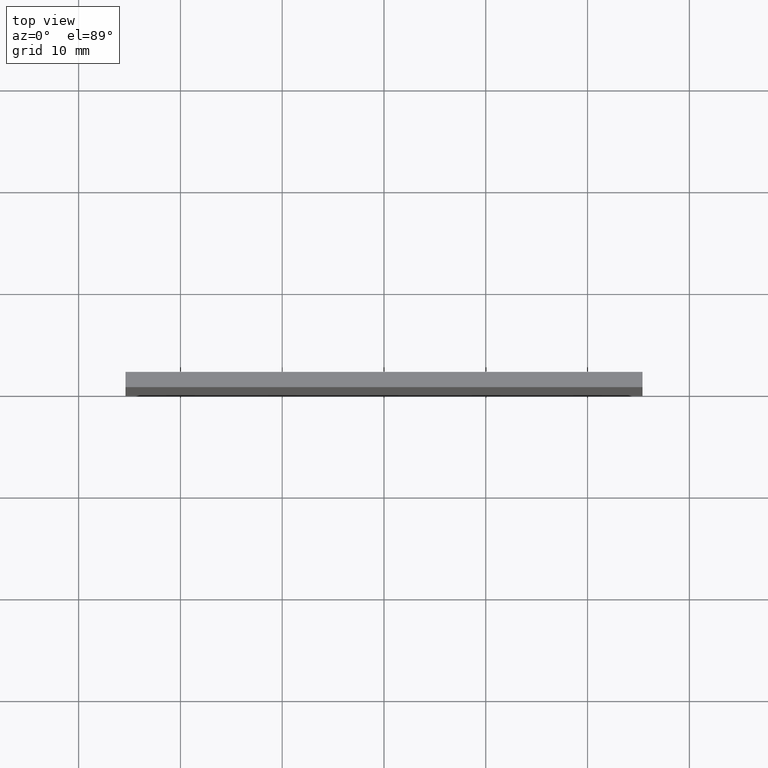
[diagram: clean part render]
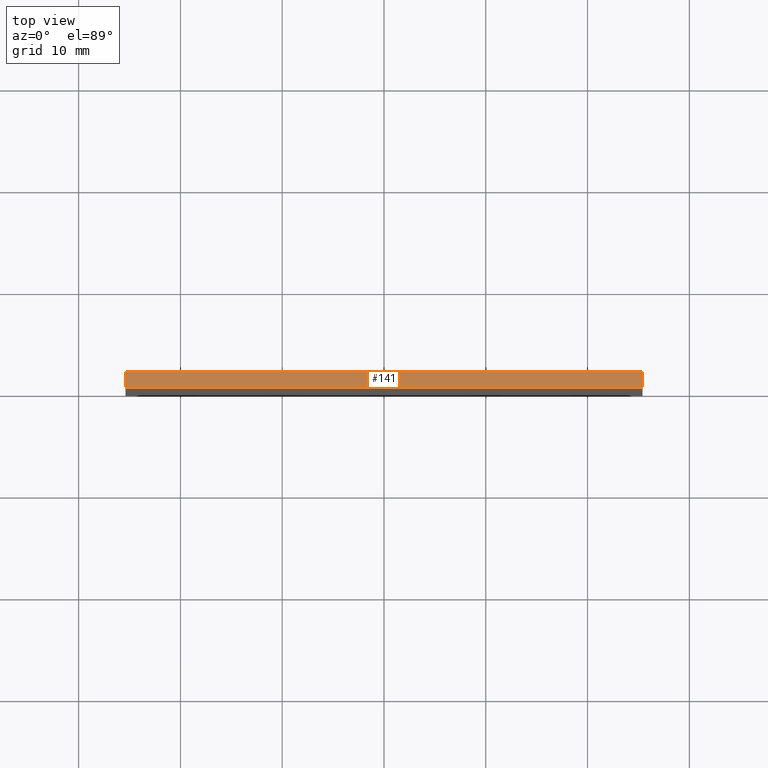
[diagram: same view with one face highlighted and labeled with its STEP entity id]
A machine part, top view. The second image highlights one B-rep face of the part: STEP entity #141.
In plain terms, the highlighted planar face has unit normal (0, 0, -1).
Its self-contained STEP definition (entity closure, byte-faithful):
#5 = CARTESIAN_POINT ( 'NONE',  ( -25.40000000000000200, 0.0000000000000000000, 25.39999999999999900 ) ) ;
#7 = DIRECTION ( 'NONE',  ( 1.000000000000000000, 0.0000000000000000000, 0.0000000000000000000 ) ) ;
#8 = CARTESIAN_POINT ( 'NONE',  ( -25.40000000000000200, 1.500000000000000000, 25.39999999999999900 ) ) ;
#19 = EDGE_CURVE ( 'NONE', #174, #90, #46, .T. ) ;
#20 = ORIENTED_EDGE ( 'NONE', *, *, #143, .F. ) ;
#21 = FACE_OUTER_BOUND ( 'NONE', #163, .T. ) ;
#33 = EDGE_CURVE ( 'NONE', #174, #147, #202, .T. ) ;
#39 = VECTOR ( 'NONE', #158, 1000.000000000000000 ) ;
#46 = LINE ( 'NONE', #59, #122 ) ;
#59 = CARTESIAN_POINT ( 'NONE',  ( -25.40000000000000200, 1.500000000000000000, 25.39999999999999900 ) ) ;
#60 = VERTEX_POINT ( 'NONE', #199 ) ;
#61 = DIRECTION ( 'NONE',  ( -0.0000000000000000000, -1.000000000000000000, -0.0000000000000000000 ) ) ;
#64 = LINE ( 'NONE', #155, #72 ) ;
#69 = CARTESIAN_POINT ( 'NONE',  ( -25.40000000000000200, 1.500000000000000000, 25.39999999999999900 ) ) ;
#72 = VECTOR ( 'NONE', #61, 1000.000000000000000 ) ;
#81 = ORIENTED_EDGE ( 'NONE', *, *, #120, .T. ) ;
#84 = PLANE ( 'NONE',  #116 ) ;
#90 = VERTEX_POINT ( 'NONE', #170 ) ;
#95 = DIRECTION ( 'NONE',  ( -0.0000000000000000000, -1.000000000000000000, -0.0000000000000000000 ) ) ;
#107 = ORIENTED_EDGE ( 'NONE', *, *, #19, .T. ) ;
#108 = CARTESIAN_POINT ( 'NONE',  ( 25.39999999999999500, 1.500000000000000000, 25.39999999999999900 ) ) ;
#116 = AXIS2_PLACEMENT_3D ( 'NONE', #69, #180, #171 ) ;
#120 = EDGE_CURVE ( 'NONE', #90, #60, #126, .T. ) ;
#122 = VECTOR ( 'NONE', #95, 1000.000000000000000 ) ;
#126 = LINE ( 'NONE', #5, #149 ) ;
#133 = CARTESIAN_POINT ( 'NONE',  ( -25.40000000000000200, 1.500000000000000000, 25.39999999999999900 ) ) ;
#141 = ADVANCED_FACE ( 'NONE', ( #21 ), #84, .F. ) ;
#143 = EDGE_CURVE ( 'NONE', #147, #60, #64, .T. ) ;
#147 = VERTEX_POINT ( 'NONE', #108 ) ;
#149 = VECTOR ( 'NONE', #7, 1000.000000000000000 ) ;
#155 = CARTESIAN_POINT ( 'NONE',  ( 25.39999999999999500, 1.500000000000000000, 25.39999999999999900 ) ) ;
#158 = DIRECTION ( 'NONE',  ( 1.000000000000000000, 0.0000000000000000000, 0.0000000000000000000 ) ) ;
#163 = EDGE_LOOP ( 'NONE', ( #81, #20, #175, #107 ) ) ;
#170 = CARTESIAN_POINT ( 'NONE',  ( -25.40000000000000200, 0.0000000000000000000, 25.39999999999999900 ) ) ;
#171 = DIRECTION ( 'NONE',  ( -1.000000000000000000, 0.0000000000000000000, -0.0000000000000000000 ) ) ;
#174 = VERTEX_POINT ( 'NONE', #8 ) ;
#175 = ORIENTED_EDGE ( 'NONE', *, *, #33, .F. ) ;
#180 = DIRECTION ( 'NONE',  ( 0.0000000000000000000, 0.0000000000000000000, -1.000000000000000000 ) ) ;
#199 = CARTESIAN_POINT ( 'NONE',  ( 25.39999999999999500, 0.0000000000000000000, 25.39999999999999900 ) ) ;
#202 = LINE ( 'NONE', #133, #39 ) ;